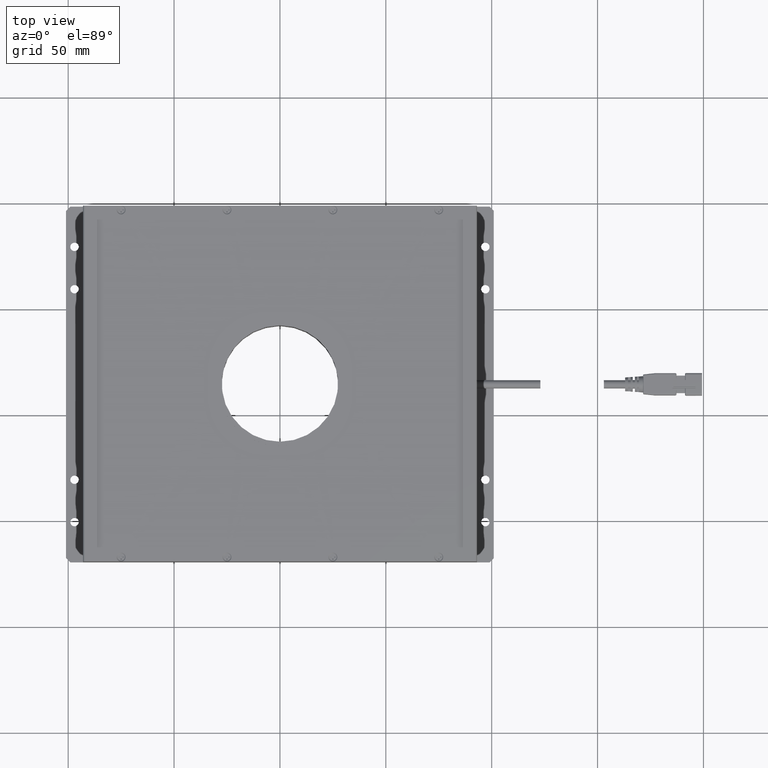
[diagram: clean part render]
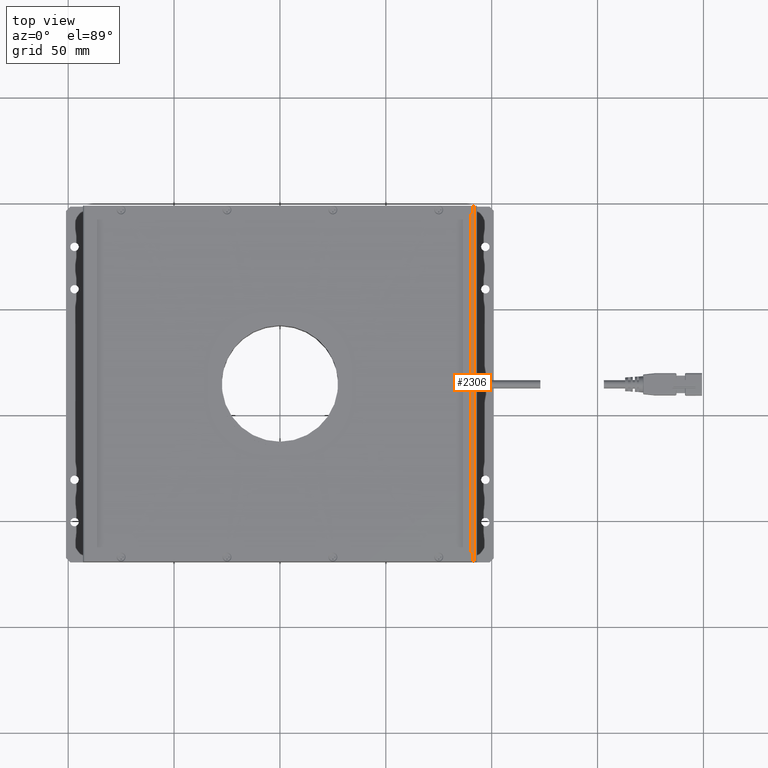
[diagram: same view with one face highlighted and labeled with its STEP entity id]
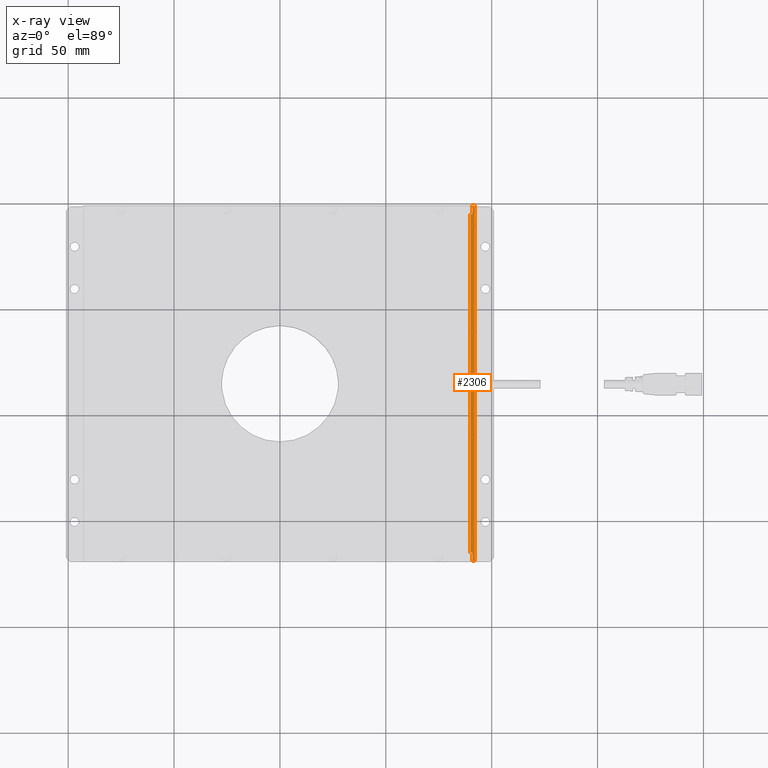
[diagram: x-ray of the same camera — body ghosted, the highlighted face saturated]
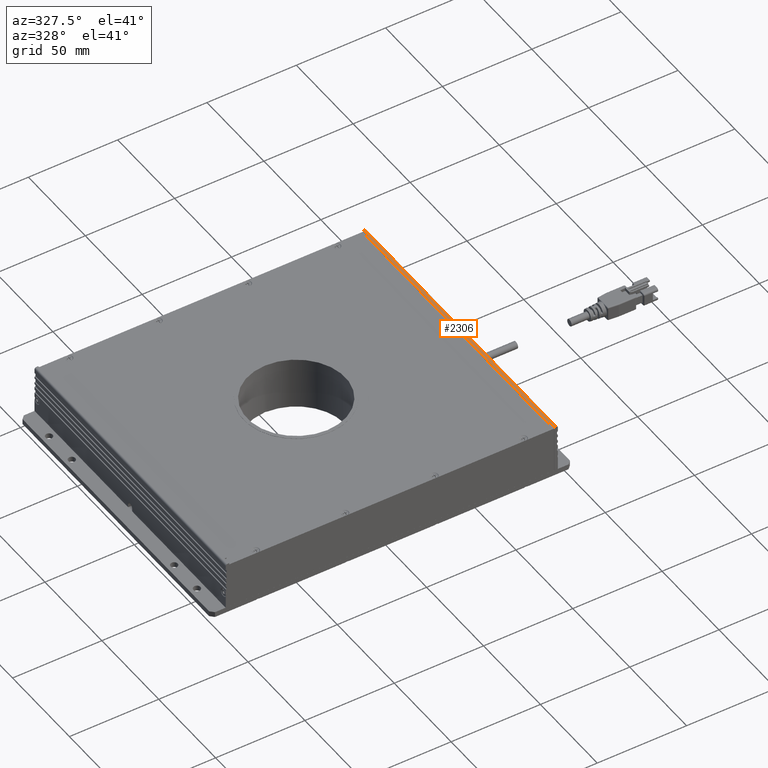
[diagram: same view with one face highlighted and labeled with its STEP entity id]
A machine part, top view. The second image highlights one B-rep face of the part: STEP entity #2306.
The next image is the same camera in x-ray: the body ghosted, the highlighted face saturated — about 0% of this face is hidden behind the body in this view.
A second angle (auxiliary view) of the same face is appended — the face is thin or edge-on in the first view.
In plain terms, the highlighted planar face has unit normal (0, -0, 1).
Its self-contained STEP definition (entity closure, byte-faithful):
#2306=ADVANCED_FACE('NONE',(#5635),#5636,.T.);
#5635=FACE_OUTER_BOUND('',#9937,.T.);
#5636=PLANE('',#9938);
#9937=EDGE_LOOP('',(#17945,#17946,#17947,#17948,#17949,#17950,#17951,#17952));
#9938=AXIS2_PLACEMENT_3D('',#17953,#17954,#17955);
#17945=ORIENTED_EDGE('',*,*,#23704,.T.);
#17946=ORIENTED_EDGE('',*,*,#22258,.T.);
#17947=ORIENTED_EDGE('',*,*,#23844,.T.);
#17948=ORIENTED_EDGE('',*,*,#23717,.F.);
#17949=ORIENTED_EDGE('',*,*,#22171,.T.);
#17950=ORIENTED_EDGE('',*,*,#22262,.T.);
#17951=ORIENTED_EDGE('',*,*,#23845,.T.);
#17952=ORIENTED_EDGE('',*,*,#22433,.T.);
#17953=CARTESIAN_POINT('',(0.093,0.0986249999999999,0.0153750000000003));
#17954=DIRECTION('',(0.0,-3.49148336110938E-15,1.0));
#17955=DIRECTION('',(1.0,0.0,0.0));
#22171=EDGE_CURVE('NONE',#24719,#24717,#24720,.T.);
#22258=EDGE_CURVE('NONE',#24877,#24875,#24878,.T.);
#22262=EDGE_CURVE('NONE',#24717,#24883,#24885,.T.);
#22433=EDGE_CURVE('NONE',#25168,#25173,#25175,.T.);
#23704=EDGE_CURVE('NONE',#25173,#24877,#27071,.T.);
#23717=EDGE_CURVE('NONE',#24719,#27087,#27088,.T.);
#23844=EDGE_CURVE('NONE',#24875,#27087,#27268,.T.);
#23845=EDGE_CURVE('NONE',#24883,#25168,#27269,.T.);
#24717=VERTEX_POINT('NONE',#28431);
#24719=VERTEX_POINT('NONE',#28434);
#24720=LINE('',#28435,#28436);
#24875=VERTEX_POINT('NONE',#28639);
#24877=VERTEX_POINT('NONE',#28642);
#24878=LINE('',#28643,#28644);
#24883=VERTEX_POINT('NONE',#28651);
#24885=LINE('',#28654,#28655);
#25168=VERTEX_POINT('NONE',#29094);
#25173=VERTEX_POINT('NONE',#29101);
#25175=LINE('',#29104,#29105);
#27071=LINE('',#31785,#31786);
#27087=VERTEX_POINT('NONE',#31808);
#27088=LINE('',#31809,#31810);
#27268=LINE('',#32072,#32073);
#27269=LINE('',#32074,#32075);
#28431=CARTESIAN_POINT('',(0.091,0.0986349999999999,0.0153750000000003));
#28434=CARTESIAN_POINT('',(0.092,0.098635,0.0153750000000003));
#28435=CARTESIAN_POINT('',(0.093,0.0986349999999999,0.0153750000000003));
#28436=VECTOR('',#33232,1.0);
#28639=CARTESIAN_POINT('',(0.091,-0.0693850000000001,0.0153749999999997));
#28642=CARTESIAN_POINT('',(0.091,-0.0653750000000001,0.0153749999999997));
#28643=CARTESIAN_POINT('',(0.091,-0.0693750000000001,0.0153749999999997));
#28644=VECTOR('',#33384,1.0);
#28651=CARTESIAN_POINT('',(0.091,0.0946249999999999,0.0153750000000003));
#28654=CARTESIAN_POINT('',(0.091,-0.0693750000000001,0.0153749999999997));
#28655=VECTOR('',#33388,1.0);
#29094=CARTESIAN_POINT('',(0.09,0.0946249999999999,0.0153750000000003));
#29101=CARTESIAN_POINT('',(0.09,-0.0653750000000001,0.0153749999999997));
#29104=CARTESIAN_POINT('',(0.09,0.0986249999999999,0.0153750000000003));
#29105=VECTOR('',#33575,1.0);
#31785=CARTESIAN_POINT('',(0.093,-0.0653750000000001,0.0153749999999997));
#31786=VECTOR('',#34753,1.0);
#31808=CARTESIAN_POINT('',(0.092,-0.0693850000000001,0.0153749999999997));
#31809=CARTESIAN_POINT('',(0.092,-0.2883798,0.0153749999999989));
#31810=VECTOR('',#34763,1.0);
#32072=CARTESIAN_POINT('',(0.093,-0.069385,0.0153749999999997));
#32073=VECTOR('',#34913,1.0);
#32074=CARTESIAN_POINT('',(0.093,0.0946249999999999,0.0153750000000003));
#32075=VECTOR('',#34914,1.0);
#33232=DIRECTION('',(-1.0,0.0,0.0));
#33384=DIRECTION('',(0.0,-1.0,-3.49148336110938E-15));
#33388=DIRECTION('',(0.0,-1.0,-3.49148336110938E-15));
#33575=DIRECTION('',(0.0,-1.0,-3.49148336110938E-15));
#34753=DIRECTION('',(1.0,0.0,0.0));
#34763=DIRECTION('',(0.0,-1.0,-3.49148336110938E-15));
#34913=DIRECTION('',(1.0,0.0,0.0));
#34914=DIRECTION('',(-1.0,0.0,0.0));